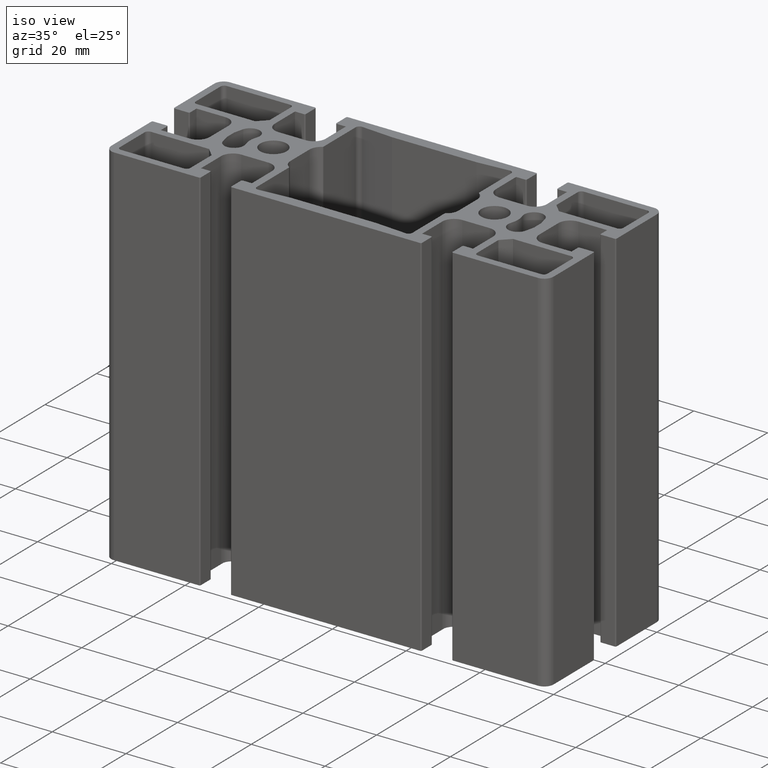
[diagram: clean part render]
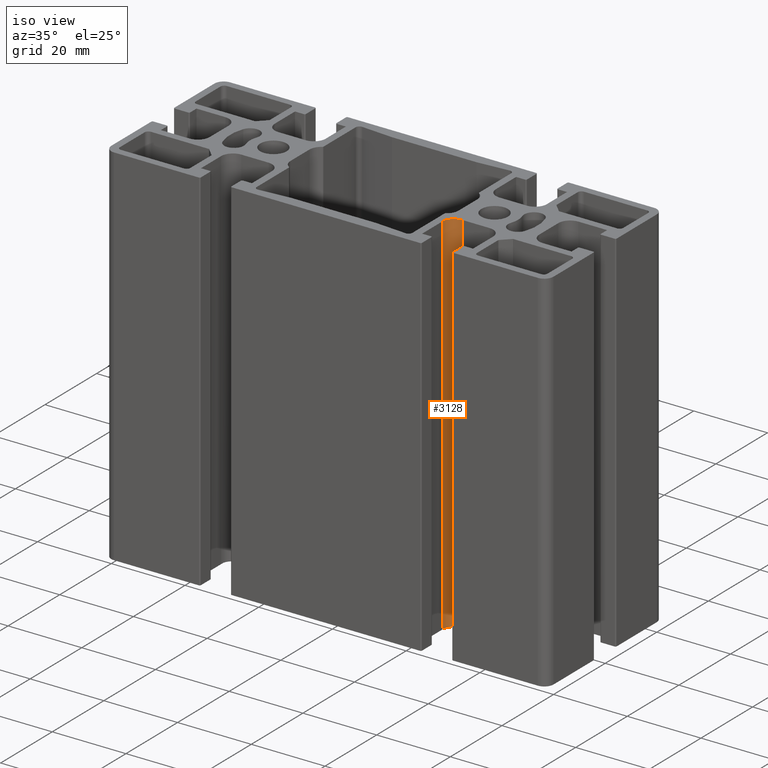
[diagram: same view with one face highlighted and labeled with its STEP entity id]
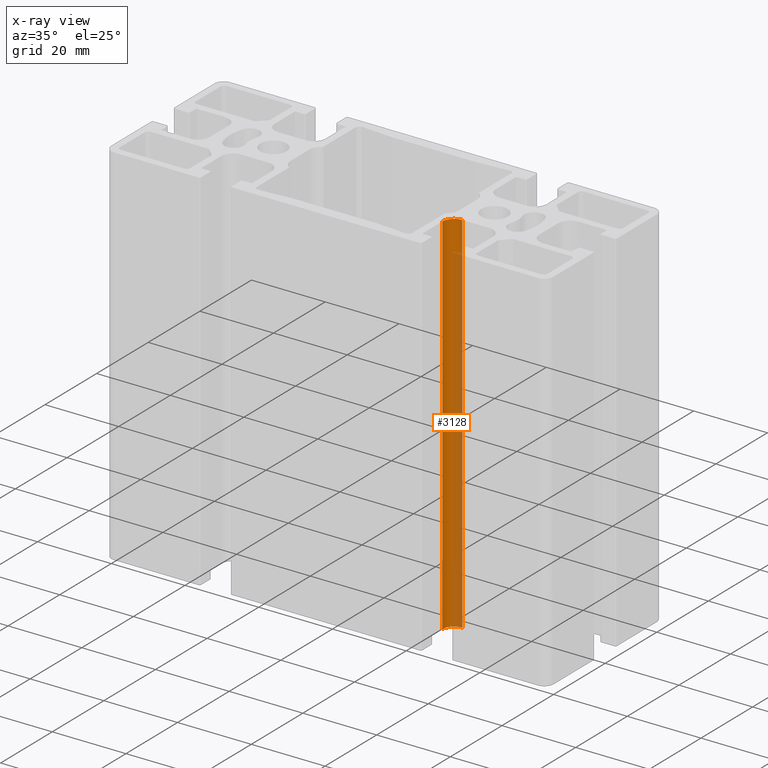
[diagram: x-ray of the same camera — body ghosted, the highlighted face saturated]
A machine part, iso view. The second image highlights one B-rep face of the part: STEP entity #3128.
The next image is the same camera in x-ray: the body ghosted, the highlighted face saturated — about 46% of this face is hidden behind the body in this view.
In plain terms, the highlighted cylindrical surface (edge-blend (fillet) strip) has radius 3.2 mm, axis along (0, 0, 1).
Its self-contained STEP definition (entity closure, byte-faithful):
#97=CIRCLE('',#3353,3.2);
#98=CIRCLE('',#3354,3.2);
#214=CYLINDRICAL_SURFACE('',#3352,3.2);
#322=FACE_OUTER_BOUND('',#482,.T.);
#482=EDGE_LOOP('',(#2293,#2294,#2295,#2296));
#732=LINE('',#4876,#1056);
#734=LINE('',#4882,#1058);
#1056=VECTOR('',#3924,100.);
#1058=VECTOR('',#3930,100.);
#1381=VERTEX_POINT('',#4873);
#1382=VERTEX_POINT('',#4875);
#1383=VERTEX_POINT('',#4879);
#1384=VERTEX_POINT('',#4881);
#1758=EDGE_CURVE('',#1382,#1381,#732,.T.);
#1760=EDGE_CURVE('',#1383,#1381,#97,.T.);
#1761=EDGE_CURVE('',#1384,#1383,#734,.T.);
#1762=EDGE_CURVE('',#1382,#1384,#98,.T.);
#2293=ORIENTED_EDGE('',*,*,#1760,.F.);
#2294=ORIENTED_EDGE('',*,*,#1761,.F.);
#2295=ORIENTED_EDGE('',*,*,#1762,.F.);
#2296=ORIENTED_EDGE('',*,*,#1758,.T.);
#3128=ADVANCED_FACE('',(#322),#214,.F.);
#3352=AXIS2_PLACEMENT_3D('',#4878,#3926,#3927);
#3353=AXIS2_PLACEMENT_3D('',#4880,#3928,#3929);
#3354=AXIS2_PLACEMENT_3D('',#4883,#3931,#3932);
#3924=DIRECTION('',(0.,0.,1.));
#3926=DIRECTION('center_axis',(0.,0.,1.));
#3927=DIRECTION('ref_axis',(0.,1.,0.));
#3928=DIRECTION('center_axis',(0.,0.,-1.));
#3929=DIRECTION('ref_axis',(0.,1.,0.));
#3930=DIRECTION('',(0.,0.,1.));
#3931=DIRECTION('center_axis',(0.,0.,1.));
#3932=DIRECTION('ref_axis',(0.,1.,0.));
#4873=CARTESIAN_POINT('',(26.3,-7.20000000000001,100.));
#4875=CARTESIAN_POINT('',(26.3,-7.20000000000001,0.));
#4876=CARTESIAN_POINT('',(26.3,-7.20000000000001,0.));
#4878=CARTESIAN_POINT('Origin',(26.3,-10.4,0.));
#4879=CARTESIAN_POINT('',(23.1,-10.4,100.));
#4880=CARTESIAN_POINT('Origin',(26.3,-10.4,100.));
#4881=CARTESIAN_POINT('',(23.1,-10.4,0.));
#4882=CARTESIAN_POINT('',(23.1,-10.4,0.));
#4883=CARTESIAN_POINT('Origin',(26.3,-10.4,0.));